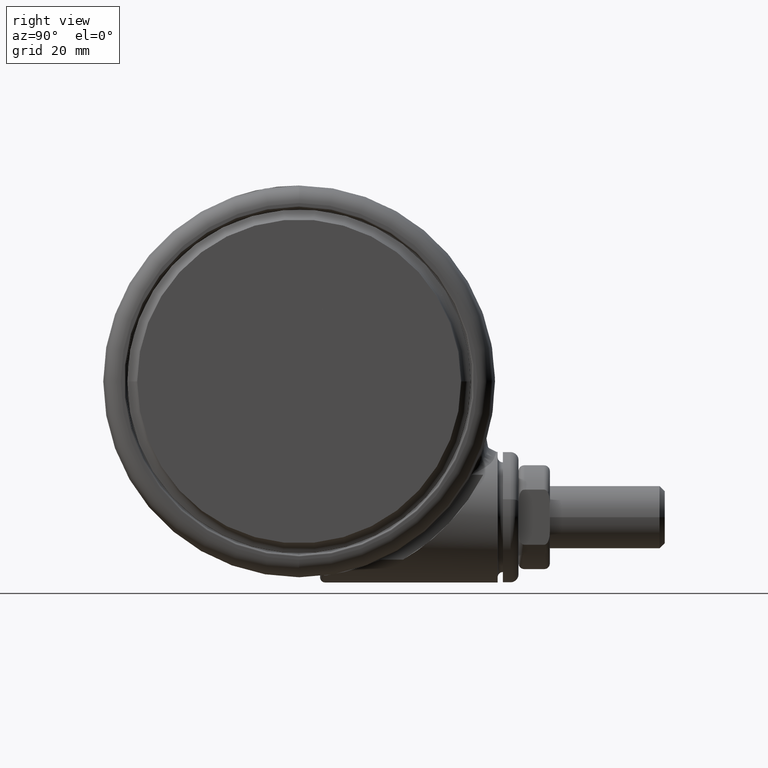
[diagram: clean part render]
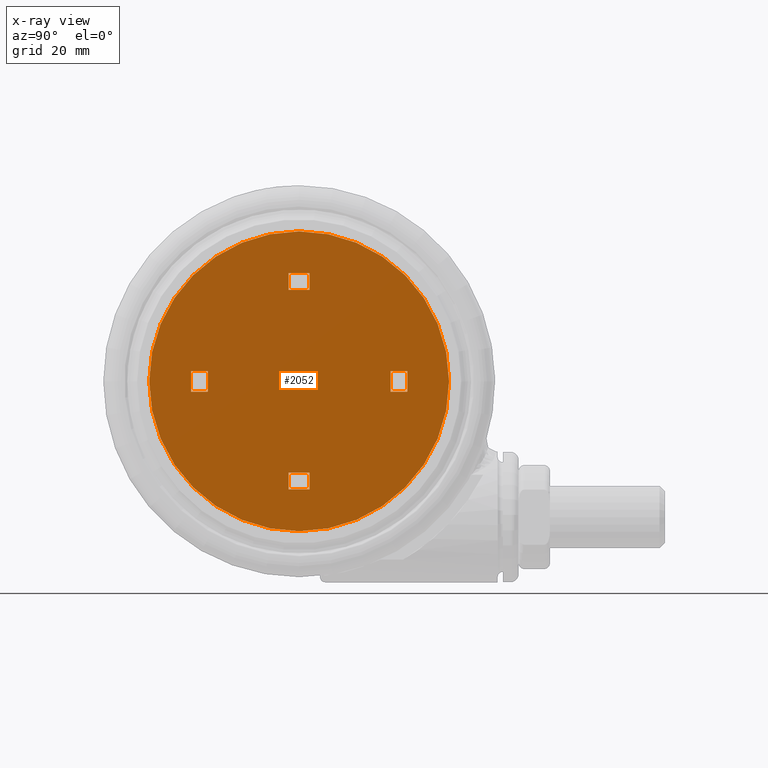
[diagram: x-ray — body ghosted, one internal face saturated and labeled with its STEP entity id]
A machine part, right view, then the same camera in x-ray: the body is ghosted and one INTERNAL B-rep face — a face not visible from any outside direction — is saturated and labeled: STEP entity #2052.
In plain terms, the highlighted planar face has unit normal (-1, 0, 0).
Its self-contained STEP definition (entity closure, byte-faithful):
#609 = EDGE_CURVE ( 'NONE', #1688, #26320, #51412, .T. ) ;
#746 = CARTESIAN_POINT ( 'NONE',  ( -1.999999999999997300, 17.49999999999999600, -46.19999999999994600 ) ) ;
#868 = FACE_BOUND ( 'NONE', #24818, .T. ) ;
#1015 = CARTESIAN_POINT ( 'NONE',  ( 2.000000000000002200, 20.70000000000000600, -46.19999999999994600 ) ) ;
#1149 = CARTESIAN_POINT ( 'NONE',  ( 17.50000000000000700, -1.999999999999942700, -46.19999999999994600 ) ) ;
#1688 = VERTEX_POINT ( 'NONE', #46648 ) ;
#1782 = VECTOR ( 'NONE', #2711, 1000.000000000000000 ) ;
#2052 = ADVANCED_FACE ( 'NONE', ( #21866, #9990, #868, #45787, #56265 ), #5883, .F. ) ;
#2097 = CARTESIAN_POINT ( 'NONE',  ( -2.000000000000147400, -20.70000000000000600, -46.19999999999994600 ) ) ;
#2222 = CARTESIAN_POINT ( 'NONE',  ( 1.999999999999852600, -20.69999999999999200, -46.19999999999994600 ) ) ;
#2649 = VERTEX_POINT ( 'NONE', #36847 ) ;
#2711 = DIRECTION ( 'NONE',  ( -1.450773079629095900E-016, 1.000000000000000000, 0.0000000000000000000 ) ) ;
#3177 = ORIENTED_EDGE ( 'NONE', *, *, #30012, .T. ) ;
#5422 = ORIENTED_EDGE ( 'NONE', *, *, #55169, .T. ) ;
#5440 = DIRECTION ( 'NONE',  ( 1.450773079629095900E-016, -1.000000000000000000, 0.0000000000000000000 ) ) ;
#5883 = PLANE ( 'NONE',  #33726 ) ;
#6074 = AXIS2_PLACEMENT_3D ( 'NONE', #46206, #19292, #50661 ) ;
#6084 = DIRECTION ( 'NONE',  ( 0.0000000000000000000, -0.0000000000000000000, -1.000000000000000000 ) ) ;
#6648 = EDGE_CURVE ( 'NONE', #17639, #14964, #55071, .T. ) ;
#6676 = DIRECTION ( 'NONE',  ( 3.275157922644210200E-015, -1.000000000000000000, -0.0000000000000000000 ) ) ;
#6884 = ORIENTED_EDGE ( 'NONE', *, *, #6648, .F. ) ;
#6892 = DIRECTION ( 'NONE',  ( 1.000000000000000000, 3.636558646806045300E-015, 0.0000000000000000000 ) ) ;
#7052 = VECTOR ( 'NONE', #41722, 1000.000000000000000 ) ;
#7260 = CARTESIAN_POINT ( 'NONE',  ( 2.000000000000000400, 19.70000000000000600, -46.19999999999994600 ) ) ;
#7525 = EDGE_CURVE ( 'NONE', #1688, #14964, #20582, .T. ) ;
#7722 = DIRECTION ( 'NONE',  ( 3.275157922644210200E-015, -1.000000000000000000, -0.0000000000000000000 ) ) ;
#8399 = ORIENTED_EDGE ( 'NONE', *, *, #609, .F. ) ;
#8479 = CARTESIAN_POINT ( 'NONE',  ( 2.000000000000002200, 20.70000000000000600, -46.19999999999994600 ) ) ;
#8636 = LINE ( 'NONE', #33091, #54846 ) ;
#9529 = VECTOR ( 'NONE', #6892, 1000.000000000000000 ) ;
#9942 = CARTESIAN_POINT ( 'NONE',  ( 1.999999999999877200, -17.49999999999999600, -46.19999999999994600 ) ) ;
#9990 = FACE_BOUND ( 'NONE', #56443, .T. ) ;
#10048 = EDGE_CURVE ( 'NONE', #24205, #53821, #8636, .T. ) ;
#11291 = ORIENTED_EDGE ( 'NONE', *, *, #7525, .T. ) ;
#11375 = CARTESIAN_POINT ( 'NONE',  ( -20.70000000000000600, 1.999999999999932500, -46.19999999999994600 ) ) ;
#11504 = VECTOR ( 'NONE', #42406, 1000.000000000000000 ) ;
#12501 = VERTEX_POINT ( 'NONE', #24500 ) ;
#14159 = VECTOR ( 'NONE', #25411, 1000.000000000000000 ) ;
#14439 = DIRECTION ( 'NONE',  ( 1.000000000000000000, -7.199286093885191400E-015, -0.0000000000000000000 ) ) ;
#14898 = DIRECTION ( 'NONE',  ( -1.000000000000000000, -3.636558646806045300E-015, 0.0000000000000000000 ) ) ;
#14964 = VERTEX_POINT ( 'NONE', #8479 ) ;
#15587 = VECTOR ( 'NONE', #7722, 1000.000000000000000 ) ;
#16559 = VECTOR ( 'NONE', #14898, 1000.000000000000000 ) ;
#16683 = CARTESIAN_POINT ( 'NONE',  ( -17.49999999999999600, -2.000000000000057300, -46.19999999999994600 ) ) ;
#17242 = ORIENTED_EDGE ( 'NONE', *, *, #38645, .T. ) ;
#17364 = AXIS2_PLACEMENT_3D ( 'NONE', #44851, #17938, #49316 ) ;
#17395 = VERTEX_POINT ( 'NONE', #46792 ) ;
#17639 = VERTEX_POINT ( 'NONE', #53565 ) ;
#17747 = ORIENTED_EDGE ( 'NONE', *, *, #10048, .T. ) ;
#17938 = DIRECTION ( 'NONE',  ( -0.0000000000000000000, 0.0000000000000000000, 1.000000000000000000 ) ) ;
#18389 = DIRECTION ( 'NONE',  ( 3.275157922644210200E-015, -1.000000000000000000, 0.0000000000000000000 ) ) ;
#18597 = EDGE_CURVE ( 'NONE', #2649, #55646, #34251, .T. ) ;
#18893 = LINE ( 'NONE', #23605, #7052 ) ;
#19211 = CIRCLE ( 'NONE', #6074, 28.69999999999999900 ) ;
#19292 = DIRECTION ( 'NONE',  ( -0.0000000000000000000, 0.0000000000000000000, 1.000000000000000000 ) ) ;
#19633 = VECTOR ( 'NONE', #41435, 1000.000000000000000 ) ;
#20260 = VERTEX_POINT ( 'NONE', #16683 ) ;
#20313 = CARTESIAN_POINT ( 'NONE',  ( 0.0000000000000000000, 0.0000000000000000000, -46.19999999999994600 ) ) ;
#20582 = LINE ( 'NONE', #1015, #56383 ) ;
#21723 = CARTESIAN_POINT ( 'NONE',  ( 17.49999999999999600, 2.000000000000057300, -46.19999999999994600 ) ) ;
#21866 = FACE_OUTER_BOUND ( 'NONE', #30059, .T. ) ;
#22457 = LINE ( 'NONE', #45938, #19633 ) ;
#23213 = VERTEX_POINT ( 'NONE', #32078 ) ;
#23313 = LINE ( 'NONE', #46887, #11504 ) ;
#23605 = CARTESIAN_POINT ( 'NONE',  ( -2.000000000000147400, -20.70000000000000600, -46.19999999999994600 ) ) ;
#24205 = VERTEX_POINT ( 'NONE', #1149 ) ;
#24421 = CARTESIAN_POINT ( 'NONE',  ( 20.70000000000000600, -1.999999999999932500, -46.19999999999994600 ) ) ;
#24500 = CARTESIAN_POINT ( 'NONE',  ( -2.000000000000122600, -17.50000000000000700, -46.19999999999994600 ) ) ;
#24576 = DIRECTION ( 'NONE',  ( -3.275157922644210200E-015, 1.000000000000000000, -0.0000000000000000000 ) ) ;
#24818 = EDGE_LOOP ( 'NONE', ( #38403, #3177, #58029, #5422 ) ) ;
#25411 = DIRECTION ( 'NONE',  ( 6.837885369723349300E-015, 1.000000000000000000, 0.0000000000000000000 ) ) ;
#25420 = CARTESIAN_POINT ( 'NONE',  ( -20.69999999999999200, -2.000000000000067500, -46.19999999999994600 ) ) ;
#25535 = CIRCLE ( 'NONE', #17364, 28.69999999999999900 ) ;
#26110 = VECTOR ( 'NONE', #6676, 1000.000000000000000 ) ;
#26320 = VERTEX_POINT ( 'NONE', #746 ) ;
#26477 = ORIENTED_EDGE ( 'NONE', *, *, #36636, .F. ) ;
#27544 = VECTOR ( 'NONE', #5440, 1000.000000000000000 ) ;
#27565 = EDGE_LOOP ( 'NONE', ( #6884, #17242, #8399, #11291 ) ) ;
#27824 = DIRECTION ( 'NONE',  ( 1.000000000000000000, -2.163234161989251100E-016, -0.0000000000000000000 ) ) ;
#28529 = EDGE_CURVE ( 'NONE', #23213, #17395, #19211, .T. ) ;
#29884 = EDGE_CURVE ( 'NONE', #17395, #23213, #25535, .T. ) ;
#30012 = EDGE_CURVE ( 'NONE', #53135, #55646, #50070, .T. ) ;
#30059 = EDGE_LOOP ( 'NONE', ( #30885, #32401 ) ) ;
#30237 = VERTEX_POINT ( 'NONE', #53380 ) ;
#30445 = CARTESIAN_POINT ( 'NONE',  ( 1.999999999999877200, -17.49999999999999600, -46.19999999999994600 ) ) ;
#30610 = EDGE_CURVE ( 'NONE', #53135, #20260, #23313, .T. ) ;
#30885 = ORIENTED_EDGE ( 'NONE', *, *, #29884, .T. ) ;
#31025 = EDGE_CURVE ( 'NONE', #40498, #30237, #38077, .T. ) ;
#32078 = CARTESIAN_POINT ( 'NONE',  ( -9.887081773446530800E-014, 28.69999999999999900, -46.19999999999994600 ) ) ;
#32401 = ORIENTED_EDGE ( 'NONE', *, *, #28529, .T. ) ;
#33091 = CARTESIAN_POINT ( 'NONE',  ( 17.49999999999999600, 2.000000000000057300, -46.19999999999994600 ) ) ;
#33311 = LINE ( 'NONE', #47049, #9529 ) ;
#33326 = VECTOR ( 'NONE', #48617, 1000.000000000000000 ) ;
#33726 = AXIS2_PLACEMENT_3D ( 'NONE', #20313, #6084, #18389 ) ;
#34251 = LINE ( 'NONE', #47617, #44834 ) ;
#35087 = CARTESIAN_POINT ( 'NONE',  ( -2.000000000000140300, -19.70000000000000600, -46.19999999999994600 ) ) ;
#36072 = LINE ( 'NONE', #9942, #57122 ) ;
#36636 = EDGE_CURVE ( 'NONE', #24205, #30237, #33311, .T. ) ;
#36765 = CARTESIAN_POINT ( 'NONE',  ( -1.999999999999999600, 19.69999999999999200, -46.19999999999994600 ) ) ;
#36847 = CARTESIAN_POINT ( 'NONE',  ( -17.50000000000000700, 1.999999999999942700, -46.19999999999994600 ) ) ;
#37051 = VERTEX_POINT ( 'NONE', #2097 ) ;
#37781 = EDGE_CURVE ( 'NONE', #41072, #39848, #47153, .T. ) ;
#38077 = LINE ( 'NONE', #24421, #26110 ) ;
#38124 = ORIENTED_EDGE ( 'NONE', *, *, #31025, .T. ) ;
#38403 = ORIENTED_EDGE ( 'NONE', *, *, #30610, .F. ) ;
#38405 = CARTESIAN_POINT ( 'NONE',  ( 1.999999999999859400, -19.69999999999999200, -46.19999999999994600 ) ) ;
#38645 = EDGE_CURVE ( 'NONE', #17639, #26320, #22457, .T. ) ;
#39463 = LINE ( 'NONE', #47866, #15587 ) ;
#39595 = VECTOR ( 'NONE', #24576, 1000.000000000000000 ) ;
#39848 = VERTEX_POINT ( 'NONE', #30445 ) ;
#40498 = VERTEX_POINT ( 'NONE', #56168 ) ;
#41072 = VERTEX_POINT ( 'NONE', #2222 ) ;
#41435 = DIRECTION ( 'NONE',  ( -1.000000000000000000, 2.163234161989251100E-016, -0.0000000000000000000 ) ) ;
#41722 = DIRECTION ( 'NONE',  ( -1.000000000000000000, 7.199286093885191400E-015, -0.0000000000000000000 ) ) ;
#42199 = DIRECTION ( 'NONE',  ( -3.275157922644210200E-015, 1.000000000000000000, -0.0000000000000000000 ) ) ;
#42406 = DIRECTION ( 'NONE',  ( 1.000000000000000000, 3.636558646806045300E-015, 0.0000000000000000000 ) ) ;
#42721 = EDGE_CURVE ( 'NONE', #40498, #53821, #52318, .T. ) ;
#44834 = VECTOR ( 'NONE', #52101, 1000.000000000000000 ) ;
#44851 = CARTESIAN_POINT ( 'NONE',  ( 0.0000000000000000000, 0.0000000000000000000, -46.19999999999994600 ) ) ;
#45315 = LINE ( 'NONE', #35087, #33326 ) ;
#45787 = FACE_BOUND ( 'NONE', #27565, .T. ) ;
#45938 = CARTESIAN_POINT ( 'NONE',  ( -1.999999999999997300, 17.49999999999999600, -46.19999999999994600 ) ) ;
#46122 = ORIENTED_EDGE ( 'NONE', *, *, #42721, .F. ) ;
#46206 = CARTESIAN_POINT ( 'NONE',  ( 0.0000000000000000000, 0.0000000000000000000, -46.19999999999994600 ) ) ;
#46648 = CARTESIAN_POINT ( 'NONE',  ( -1.999999999999997800, 20.69999999999999200, -46.19999999999994600 ) ) ;
#46792 = CARTESIAN_POINT ( 'NONE',  ( 9.399703237988882500E-014, -28.69999999999999900, -46.19999999999994600 ) ) ;
#46809 = EDGE_CURVE ( 'NONE', #12501, #39848, #36072, .T. ) ;
#46887 = CARTESIAN_POINT ( 'NONE',  ( -19.69999999999999200, -2.000000000000064800, -46.19999999999994600 ) ) ;
#46993 = CARTESIAN_POINT ( 'NONE',  ( -20.70000000000000600, 1.999999999999932500, -46.19999999999994600 ) ) ;
#47049 = CARTESIAN_POINT ( 'NONE',  ( 19.70000000000000600, -1.999999999999935400, -46.19999999999994600 ) ) ;
#47153 = LINE ( 'NONE', #38405, #14159 ) ;
#47617 = CARTESIAN_POINT ( 'NONE',  ( -19.70000000000000600, 1.999999999999935400, -46.19999999999994600 ) ) ;
#47866 = CARTESIAN_POINT ( 'NONE',  ( -17.49999999999999600, -2.000000000000057300, -46.19999999999994600 ) ) ;
#48617 = DIRECTION ( 'NONE',  ( -6.837885369723349300E-015, -1.000000000000000000, 0.0000000000000000000 ) ) ;
#49316 = DIRECTION ( 'NONE',  ( 3.275157922644210200E-015, -1.000000000000000000, 0.0000000000000000000 ) ) ;
#49795 = EDGE_LOOP ( 'NONE', ( #49922, #52453, #55594, #54481 ) ) ;
#49922 = ORIENTED_EDGE ( 'NONE', *, *, #52791, .F. ) ;
#50070 = LINE ( 'NONE', #46993, #39595 ) ;
#50661 = DIRECTION ( 'NONE',  ( 3.275157922644210200E-015, -1.000000000000000000, 0.0000000000000000000 ) ) ;
#50756 = CARTESIAN_POINT ( 'NONE',  ( 19.69999999999999200, 2.000000000000064800, -46.19999999999994600 ) ) ;
#51412 = LINE ( 'NONE', #36765, #27544 ) ;
#52101 = DIRECTION ( 'NONE',  ( -1.000000000000000000, -3.636558646806045300E-015, 0.0000000000000000000 ) ) ;
#52318 = LINE ( 'NONE', #50756, #16559 ) ;
#52453 = ORIENTED_EDGE ( 'NONE', *, *, #46809, .T. ) ;
#52791 = EDGE_CURVE ( 'NONE', #12501, #37051, #45315, .T. ) ;
#53135 = VERTEX_POINT ( 'NONE', #25420 ) ;
#53380 = CARTESIAN_POINT ( 'NONE',  ( 20.70000000000000600, -1.999999999999932500, -46.19999999999994600 ) ) ;
#53565 = CARTESIAN_POINT ( 'NONE',  ( 2.000000000000002700, 17.50000000000000700, -46.19999999999994600 ) ) ;
#53821 = VERTEX_POINT ( 'NONE', #21723 ) ;
#54481 = ORIENTED_EDGE ( 'NONE', *, *, #57677, .T. ) ;
#54846 = VECTOR ( 'NONE', #42199, 1000.000000000000000 ) ;
#55071 = LINE ( 'NONE', #7260, #1782 ) ;
#55169 = EDGE_CURVE ( 'NONE', #2649, #20260, #39463, .T. ) ;
#55594 = ORIENTED_EDGE ( 'NONE', *, *, #37781, .F. ) ;
#55646 = VERTEX_POINT ( 'NONE', #11375 ) ;
#56168 = CARTESIAN_POINT ( 'NONE',  ( 20.69999999999999200, 2.000000000000067500, -46.19999999999994600 ) ) ;
#56265 = FACE_BOUND ( 'NONE', #49795, .T. ) ;
#56383 = VECTOR ( 'NONE', #27824, 1000.000000000000000 ) ;
#56443 = EDGE_LOOP ( 'NONE', ( #46122, #38124, #26477, #17747 ) ) ;
#57122 = VECTOR ( 'NONE', #14439, 1000.000000000000000 ) ;
#57677 = EDGE_CURVE ( 'NONE', #41072, #37051, #18893, .T. ) ;
#58029 = ORIENTED_EDGE ( 'NONE', *, *, #18597, .F. ) ;